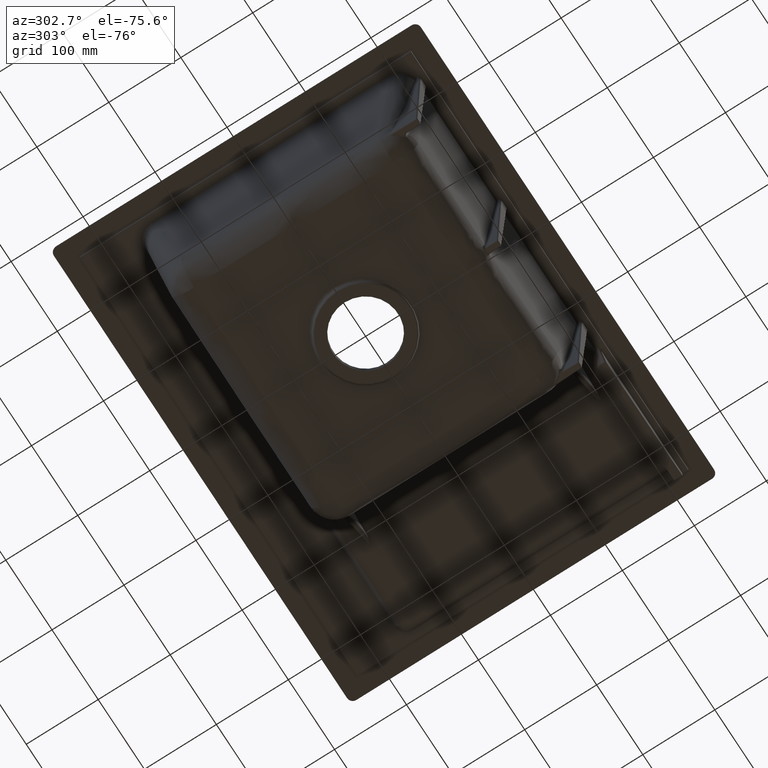
[diagram: clean part render]
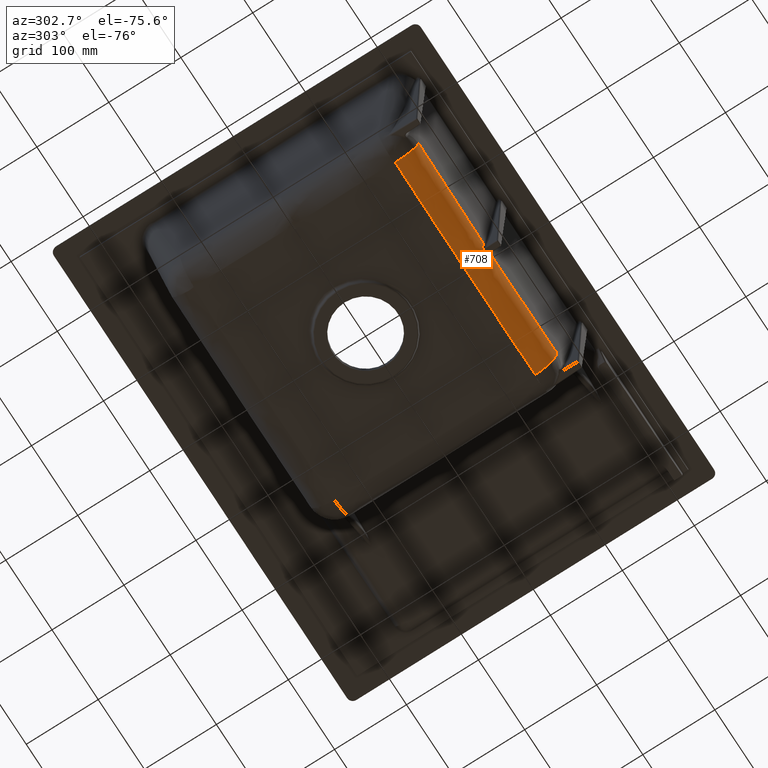
[diagram: same view with one face highlighted and labeled with its STEP entity id]
A machine part, auxiliary view. The second image highlights one B-rep face of the part: STEP entity #708.
In plain terms, the highlighted face is a freeform B-spline surface patch.
Its self-contained STEP definition (entity closure, byte-faithful):
#98=(
BOUNDED_SURFACE()
B_SPLINE_SURFACE(3,2,((#14432,#14433,#14434),(#14435,#14436,#14437),(#14438,
#14439,#14440),(#14441,#14442,#14443),(#14444,#14445,#14446),(#14447,#14448,
#14449),(#14450,#14451,#14452),(#14453,#14454,#14455),(#14456,#14457,#14458),
(#14459,#14460,#14461)),.UNSPECIFIED.,.F.,.F.,.F.)
B_SPLINE_SURFACE_WITH_KNOTS((4,2,2,2,4),(3,3),(0.,0.25,0.5,0.75,1.),(0.,
1.),.UNSPECIFIED.)
GEOMETRIC_REPRESENTATION_ITEM()
RATIONAL_B_SPLINE_SURFACE(((1.,0.75858376606613,1.),(1.,0.759953504897266,
1.),(1.,0.761676300673704,1.),(1.,0.764769755595702,1.),(1.,0.766047443621045,
1.),(1.,0.766041430867309,1.),(1.,0.764757463830444,1.),(1.,0.761658398586962,
1.),(1.,0.759936190087251,1.),(1.,0.758567546641225,1.)))
REPRESENTATION_ITEM('')
SURFACE()
);
#198=(
BOUNDED_CURVE()
B_SPLINE_CURVE(2,(#14234,#14235,#14236),.UNSPECIFIED.,.F.,.F.)
B_SPLINE_CURVE_WITH_KNOTS((3,3),(0.,1.),.UNSPECIFIED.)
CURVE()
GEOMETRIC_REPRESENTATION_ITEM()
RATIONAL_B_SPLINE_CURVE((1.,0.758567546643848,1.))
REPRESENTATION_ITEM('')
);
#708=ADVANCED_FACE('',(#997),#98,.T.);
#997=FACE_OUTER_BOUND('',#1266,.T.);
#1266=EDGE_LOOP('',(#1916,#1917,#1918,#1919,#1920,#1921,#1922,#1923,#1924,
#1925));
#1916=ORIENTED_EDGE('',*,*,#3141,.F.);
#1917=ORIENTED_EDGE('',*,*,#3330,.T.);
#1918=ORIENTED_EDGE('',*,*,#3145,.F.);
#1919=ORIENTED_EDGE('',*,*,#3333,.F.);
#1920=ORIENTED_EDGE('',*,*,#2975,.F.);
#1921=ORIENTED_EDGE('',*,*,#3334,.T.);
#1922=ORIENTED_EDGE('',*,*,#3335,.T.);
#1923=ORIENTED_EDGE('',*,*,#3336,.T.);
#1924=ORIENTED_EDGE('',*,*,#3337,.T.);
#1925=ORIENTED_EDGE('',*,*,#3338,.T.);
#2629=VERTEX_POINT('',#4865);
#2632=VERTEX_POINT('',#4910);
#2633=VERTEX_POINT('',#4915);
#2784=VERTEX_POINT('',#8304);
#2787=VERTEX_POINT('',#8380);
#2788=VERTEX_POINT('',#8381);
#2937=VERTEX_POINT('',#14408);
#2938=VERTEX_POINT('',#14415);
#2939=VERTEX_POINT('',#14420);
#2940=VERTEX_POINT('',#14427);
#2975=EDGE_CURVE('',#2632,#2633,#3569,.T.);
#3141=EDGE_CURVE('',#2629,#2784,#3687,.T.);
#3145=EDGE_CURVE('',#2787,#2788,#3691,.T.);
#3330=EDGE_CURVE('',#2629,#2788,#198,.T.);
#3333=EDGE_CURVE('',#2633,#2787,#3832,.T.);
#3334=EDGE_CURVE('',#2632,#2937,#3833,.T.);
#3335=EDGE_CURVE('',#2937,#2938,#3834,.T.);
#3336=EDGE_CURVE('',#2938,#2939,#3835,.T.);
#3337=EDGE_CURVE('',#2939,#2940,#3836,.T.);
#3338=EDGE_CURVE('',#2940,#2784,#3837,.T.);
#3569=B_SPLINE_CURVE_WITH_KNOTS('',3,(#4911,#4912,#4913,#4914),
 .UNSPECIFIED.,.F.,.F.,(4,4),(0.,1.),.UNSPECIFIED.);
#3687=B_SPLINE_CURVE_WITH_KNOTS('',3,(#8300,#8301,#8302,#8303),
 .UNSPECIFIED.,.F.,.F.,(4,4),(0.,1.),.UNSPECIFIED.);
#3691=B_SPLINE_CURVE_WITH_KNOTS('',3,(#8332,#8333,#8334,#8335,#8336,#8337,
#8338,#8339,#8340,#8341,#8342,#8343,#8344,#8345,#8346,#8347,#8348,#8349,
#8350,#8351,#8352,#8353,#8354,#8355,#8356,#8357,#8358,#8359,#8360,#8361,
#8362,#8363,#8364,#8365,#8366,#8367,#8368,#8369,#8370,#8371,#8372,#8373,
#8374,#8375,#8376,#8377,#8378,#8379),.UNSPECIFIED.,.F.,.F.,(4,2,2,2,2,1,
2,2,2,2,2,2,2,2,2,2,2,2,2,2,1,2,2,2,4),(0.,0.124999999999996,0.187499999999994,
0.218749999999993,0.234374999999992,0.242187499999992,0.246093749999992,
0.249999999999992,0.312499999999993,0.343749999999993,0.359374999999994,
0.374999999999994,0.499999999999995,0.562499999999996,0.593749999999996,
0.609374999999996,0.624999999999996,0.687499999999997,0.718749999999997,
0.734374999999997,0.742187499999997,0.746093749999997,0.749999999999997,
0.874999999999999,1.),.UNSPECIFIED.);
#3832=B_SPLINE_CURVE_WITH_KNOTS('',3,(#14394,#14395,#14396,#14397,#14398,
#14399,#14400,#14401,#14402,#14403),.UNSPECIFIED.,.F.,.F.,(4,2,2,2,4),(0.,
0.25,0.5,0.75,1.),.UNSPECIFIED.);
#3833=B_SPLINE_CURVE_WITH_KNOTS('',3,(#14404,#14405,#14406,#14407),
 .UNSPECIFIED.,.F.,.F.,(4,4),(0.,1.),.UNSPECIFIED.);
#3834=B_SPLINE_CURVE_WITH_KNOTS('',3,(#14409,#14410,#14411,#14412,#14413,
#14414),.UNSPECIFIED.,.F.,.F.,(4,2,4),(0.,0.5,1.),.UNSPECIFIED.);
#3835=B_SPLINE_CURVE_WITH_KNOTS('',3,(#14416,#14417,#14418,#14419),
 .UNSPECIFIED.,.F.,.F.,(4,4),(0.,1.),.UNSPECIFIED.);
#3836=B_SPLINE_CURVE_WITH_KNOTS('',3,(#14421,#14422,#14423,#14424,#14425,
#14426),.UNSPECIFIED.,.F.,.F.,(4,2,4),(0.,0.5,1.),.UNSPECIFIED.);
#3837=B_SPLINE_CURVE_WITH_KNOTS('',3,(#14428,#14429,#14430,#14431),
 .UNSPECIFIED.,.F.,.F.,(4,4),(0.,1.),.UNSPECIFIED.);
#4865=CARTESIAN_POINT('',(-150.048038957563,-169.948598877214,44.958642051377));
#4910=CARTESIAN_POINT('',(7.73424178078574,-168.994759443562,40.2752879781915));
#4911=CARTESIAN_POINT('',(7.73424178078583,-168.994759443591,40.2752879781938));
#4912=CARTESIAN_POINT('',(55.3270110610122,-168.924026671461,40.4576337940147));
#4913=CARTESIAN_POINT('',(102.883901405382,-169.090145938564,42.4682341449577));
#4914=CARTESIAN_POINT('',(150.431649034771,-169.34964857054,44.943523951363));
#4915=CARTESIAN_POINT('',(150.431648795699,-169.349648577428,44.9435239916));
#8300=CARTESIAN_POINT('',(-150.048001314028,-169.948598535555,44.9586401949265));
#8301=CARTESIAN_POINT('',(-102.642566272683,-169.501151758162,42.4885549819018));
#8302=CARTESIAN_POINT('',(-55.1835559135086,-169.145974907701,40.4764851304842));
#8303=CARTESIAN_POINT('',(-7.74536168468239,-169.02586063728,40.278022968788));
#8304=CARTESIAN_POINT('',(-7.74536168468276,-169.025860637262,40.2780229687865));
#8332=CARTESIAN_POINT('',(152.135776295592,-138.077496643452,15.4733495109291));
#8333=CARTESIAN_POINT('',(138.220642539977,-138.079571561939,14.7529183867652));
#8334=CARTESIAN_POINT('',(125.006115431445,-138.120097360476,14.1152904005455));
#8335=CARTESIAN_POINT('',(106.090842541946,-138.166215050655,13.2830531281325));
#8336=CARTESIAN_POINT('',(99.9354462678957,-138.180942573332,13.0263414884809));
#8337=CARTESIAN_POINT('',(90.8933199216525,-138.204344793908,12.6723252057327));
#8338=CARTESIAN_POINT('',(87.9109815312615,-138.212415708325,12.5594949742714));
#8339=CARTESIAN_POINT('',(83.4796364646169,-138.225467730607,12.3980124212619));
#8340=CARTESIAN_POINT('',(82.0095398039649,-138.22997664447,12.3454787026224));
#8341=CARTESIAN_POINT('',(79.8141678523867,-138.237043110307,12.2686188232087));
#8342=CARTESIAN_POINT('',(78.7189242844874,-138.240652037096,12.2306740581383));
#8343=CARTESIAN_POINT('',(77.6271950871439,-138.24438573119,12.1934570550224));
#8344=CARTESIAN_POINT('',(76.9001394686387,-138.246903727283,12.1688074444907));
#8345=CARTESIAN_POINT('',(76.5817571268006,-138.248018181506,12.1580643381224));
#8346=CARTESIAN_POINT('',(69.6536436529555,-138.272624006121,11.9257777517517));
#8347=CARTESIAN_POINT('',(63.2671016728884,-138.29311759073,11.7331924607326));
#8348=CARTESIAN_POINT('',(53.8014493830275,-138.327283078938,11.4833705919632));
#8349=CARTESIAN_POINT('',(50.6650169409996,-138.339127495377,11.4066059803333));
#8350=CARTESIAN_POINT('',(45.975561431939,-138.356938125894,11.3012230798282));
#8351=CARTESIAN_POINT('',(44.4149273607735,-138.362868548208,11.2677227824832));
#8352=CARTESIAN_POINT('',(41.2963638219702,-138.374420501964,11.2039768601064));
#8353=CARTESIAN_POINT('',(39.7915586722472,-138.379863754096,11.1747071871718));
#8354=CARTESIAN_POINT('',(25.2932819624563,-138.428683619513,10.9083590184205));
#8355=CARTESIAN_POINT('',(12.9179782562058,-138.4654778556,10.7902987020733));
#8356=CARTESIAN_POINT('',(-6.19706601924095,-138.503166997037,10.79124886705));
#8357=CARTESIAN_POINT('',(-12.4758601044805,-138.503635707946,10.8212481330076));
#8358=CARTESIAN_POINT('',(-21.9252111742122,-138.514701102614,10.9107708483918));
#8359=CARTESIAN_POINT('',(-25.0801278729688,-138.519502227058,10.9480323895946));
#8360=CARTESIAN_POINT('',(-29.8404215871817,-138.526795616016,11.0150556555107));
#8361=CARTESIAN_POINT('',(-31.4318287541358,-138.52920846346,11.039251903168));
#8362=CARTESIAN_POINT('',(-34.627153019959,-138.533350078796,11.0913547165201));
#8363=CARTESIAN_POINT('',(-36.2843520893596,-138.535109544952,11.1202451646121));
#8364=CARTESIAN_POINT('',(-44.0765856490787,-138.53966745138,11.2641343761924));
#8365=CARTESIAN_POINT('',(-50.3145807818661,-138.538872908766,11.4053061036547));
#8366=CARTESIAN_POINT('',(-59.7869289736571,-138.542409013281,11.6561542321455));
#8367=CARTESIAN_POINT('',(-62.9633864697546,-138.544099600812,11.7462853645253));
#8368=CARTESIAN_POINT('',(-67.7681475056739,-138.546898840894,11.8912546974194));
#8369=CARTESIAN_POINT('',(-69.3763987564303,-138.547865421081,11.9412065807714));
#8370=CARTESIAN_POINT('',(-71.8000827652477,-138.549225006663,12.0185775643806));
#8371=CARTESIAN_POINT('',(-73.0147501478255,-138.549881550954,12.0578738458304));
#8372=CARTESIAN_POINT('',(-74.2338886959861,-138.55047147033,12.0980863117482));
#8373=CARTESIAN_POINT('',(-75.0476663476876,-138.550846100772,12.1250982189085));
#8374=CARTESIAN_POINT('',(-75.5000673009737,-138.551042500391,12.140218443822));
#8375=CARTESIAN_POINT('',(-87.4763321536726,-138.555937709999,12.5427219871117));
#8376=CARTESIAN_POINT('',(-99.4862902539759,-138.577189989465,13.015879412163));
#8377=CARTESIAN_POINT('',(-124.724858523043,-138.616249624292,14.1278961799275));
#8378=CARTESIAN_POINT('',(-137.950454965262,-138.628378639528,14.7667555226407));
#8379=CARTESIAN_POINT('',(-151.87794282735,-138.681842323498,15.4884658241849));
#8380=CARTESIAN_POINT('',(152.135776295592,-138.077496643456,15.473349510929));
#8381=CARTESIAN_POINT('',(-151.877942827397,-138.681842316006,15.488465823834));
#14234=CARTESIAN_POINT('',(-150.048001266049,-169.94859853509,44.9586401924259));
#14235=CARTESIAN_POINT('',(-151.542134879664,-166.995550286256,16.8061587563049));
#14236=CARTESIAN_POINT('',(-151.877942779106,-138.681842323307,15.4884658216844));
#14394=CARTESIAN_POINT('',(150.431648618319,-169.349648552098,44.9435237253268));
#14395=CARTESIAN_POINT('',(150.618896204051,-168.975562608563,41.3843586946976));
#14396=CARTESIAN_POINT('',(150.818149280522,-167.981487642586,37.6594787499302));
#14397=CARTESIAN_POINT('',(151.205858433141,-164.568719972695,30.5665595869335));
#14398=CARTESIAN_POINT('',(151.393518109752,-162.145802750189,27.2142678588941));
#14399=CARTESIAN_POINT('',(151.716529484372,-156.218276963189,21.6283005695011));
#14400=CARTESIAN_POINT('',(151.851169927837,-152.726720507627,19.4069250227208));
#14401=CARTESIAN_POINT('',(152.046599116798,-145.438417476262,16.4153952863493));
#14402=CARTESIAN_POINT('',(152.107569952119,-141.657168510216,15.6401171147165));
#14403=CARTESIAN_POINT('',(152.135776299338,-138.077496648826,15.4733495113758));
#14404=CARTESIAN_POINT('',(7.73424178072433,-168.994759411067,40.275287981608));
#14405=CARTESIAN_POINT('',(7.70993485317435,-168.806618861498,38.4851161487037));
#14406=CARTESIAN_POINT('',(7.69041372290061,-168.473486286026,36.7369974781012));
#14407=CARTESIAN_POINT('',(7.67561482015115,-168.020506192125,35.0701594140702));
#14408=CARTESIAN_POINT('',(7.6756150446553,-168.020594445753,35.0701354282615));
#14409=CARTESIAN_POINT('',(7.67561482015046,-168.020506192125,35.0701594140698));
#14410=CARTESIAN_POINT('',(7.66425844729774,-167.672898607406,33.7910622498497));
#14411=CARTESIAN_POINT('',(7.15767939489923,-167.254999047085,32.5831449071796));
#14412=CARTESIAN_POINT('',(5.33525737761604,-166.537831292902,30.7428666325678));
#14413=CARTESIAN_POINT('',(4.05530256851907,-166.286661659524,30.1981336463392));
#14414=CARTESIAN_POINT('',(2.7392340832839,-166.290004227759,30.1985386052253));
#14415=CARTESIAN_POINT('',(2.7392341358543,-166.290026116618,30.1985287800905));
#14416=CARTESIAN_POINT('',(2.73923408328391,-166.290004227759,30.1985386052253));
#14417=CARTESIAN_POINT('',(0.910241897913978,-166.294649526426,30.1991013925321));
#14418=CARTESIAN_POINT('',(-0.919404707343591,-166.298469701307,30.1997495951945));
#14419=CARTESIAN_POINT('',(-2.7495392184762,-166.301465091971,30.2004826122194));
#14420=CARTESIAN_POINT('',(-2.74953917342468,-166.301496014012,30.2004687336285));
#14421=CARTESIAN_POINT('',(-2.74953921847531,-166.30146509197,30.2004826122156));
#14422=CARTESIAN_POINT('',(-4.06147023970564,-166.303612336289,30.2010080751075));
#14423=CARTESIAN_POINT('',(-5.35503051574251,-166.56431499503,30.7575308751757));
#14424=CARTESIAN_POINT('',(-7.15439800222359,-167.278878119313,32.573257820483));
#14425=CARTESIAN_POINT('',(-7.67474538857149,-167.705374185473,33.7994885092547));
#14426=CARTESIAN_POINT('',(-7.68624309426364,-168.052076499388,35.0755023150391));
#14427=CARTESIAN_POINT('',(-7.68624295687337,-168.052176174558,35.075475233802));
#14428=CARTESIAN_POINT('',(-7.68624309426364,-168.052076499388,35.075502315038));
#14429=CARTESIAN_POINT('',(-7.70115591006129,-168.501758190839,36.7305245732429));
#14430=CARTESIAN_POINT('',(-7.72079661775572,-168.836581599508,38.477985092582));
#14431=CARTESIAN_POINT('',(-7.74536168413424,-169.025860899432,40.278022941226));
#14432=CARTESIAN_POINT('',(150.431649034771,-169.349648570543,44.9435239513679));
#14433=CARTESIAN_POINT('',(151.912679428112,-166.390824988514,16.7923938740253));
#14434=CARTESIAN_POINT('',(152.135777641789,-138.07749664326,15.4733495806263));
#14435=CARTESIAN_POINT('',(125.409709514048,-169.213085635315,43.6409057897738));
#14436=CARTESIAN_POINT('',(126.818917205552,-166.266254580031,15.608502156158));
#14437=CARTESIAN_POINT('',(126.976184578585,-138.081247176787,14.1707566622656));
#14438=CARTESIAN_POINT('',(100.384859048674,-169.10309624495,42.4737186965118));
#14439=CARTESIAN_POINT('',(101.636286947587,-166.170465511957,14.5805323999248));
#14440=CARTESIAN_POINT('',(101.759940654842,-138.141789303134,13.0035443112788));
#14441=CARTESIAN_POINT('',(50.323012195313,-168.974231654177,40.771158104531));
#14442=CARTESIAN_POINT('',(51.0769940560905,-166.068067425005,13.1310246507859));
#14443=CARTESIAN_POINT('',(51.1100716173133,-138.326149593313,11.3009837482808));
#14444=CARTESIAN_POINT('',(25.2854201257059,-168.957884741747,40.2598348021951));
#14445=CARTESIAN_POINT('',(25.6406418778699,-166.062774816459,12.7214800298918));
#14446=CARTESIAN_POINT('',(25.657470067722,-138.440130621185,10.7896604373301));
#14447=CARTESIAN_POINT('',(-24.8098653480548,-169.057711670724,40.2623781444978));
#14448=CARTESIAN_POINT('',(-25.1796172184257,-166.163992473485,12.7235369046011));
#14449=CARTESIAN_POINT('',(-25.3065319759159,-138.541073896976,10.7922037678795));
#14450=CARTESIAN_POINT('',(-49.8746610034629,-169.173952812839,40.776644352559));
#14451=CARTESIAN_POINT('',(-50.6430660454935,-166.270712400157,13.1355207943968));
#14452=CARTESIAN_POINT('',(-50.7867284825472,-138.528001819429,11.3064699949921));
#14453=CARTESIAN_POINT('',(-99.9774871463989,-169.502553052265,42.4848629083986));
#14454=CARTESIAN_POINT('',(-101.242787328347,-166.574774242137,14.5902125584952));
#14455=CARTESIAN_POINT('',(-101.478012163014,-138.545155188246,13.0146885244822));
#14456=CARTESIAN_POINT('',(-125.015655511293,-169.712325138644,43.6543164627843));
#14457=CARTESIAN_POINT('',(-126.438181138796,-166.770975386441,15.6204771548136));
#14458=CARTESIAN_POINT('',(-126.707706575122,-138.585219959802,14.184166039489));
#14459=CARTESIAN_POINT('',(-150.048001314028,-169.948598535543,44.9586401949259));
#14460=CARTESIAN_POINT('',(-151.542134927867,-166.995550286687,16.8061587585816));
#14461=CARTESIAN_POINT('',(-151.877942827349,-138.681842323492,15.4884658241843));